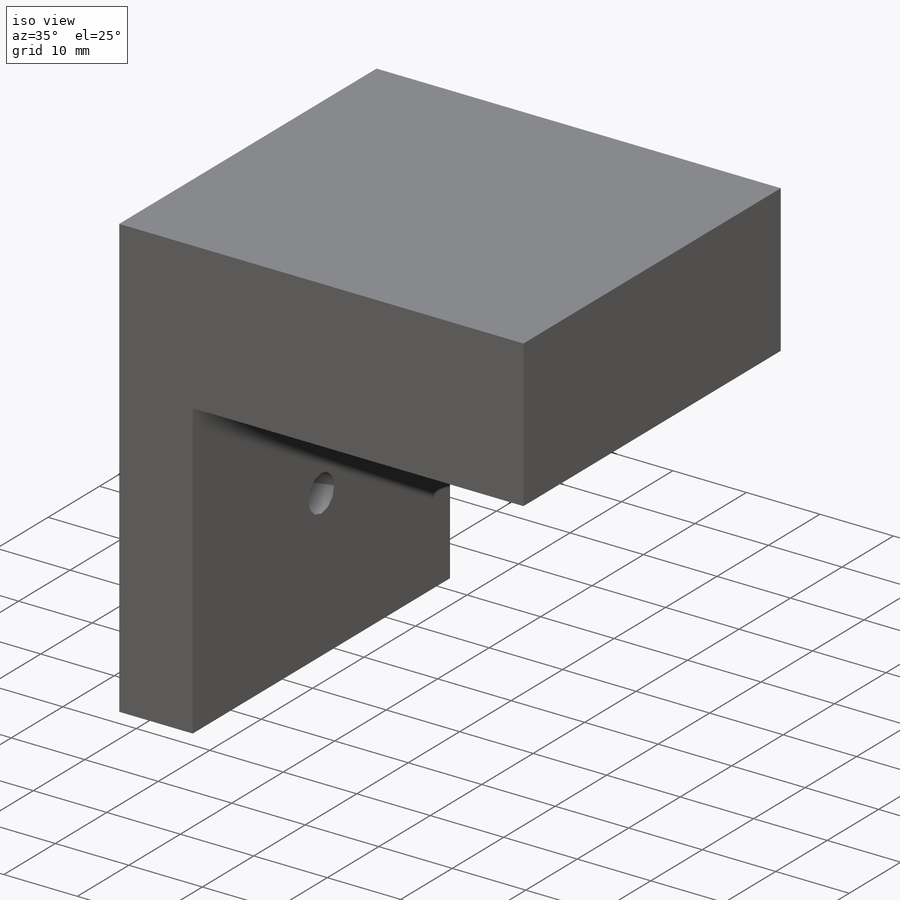
[diagram: iso view]
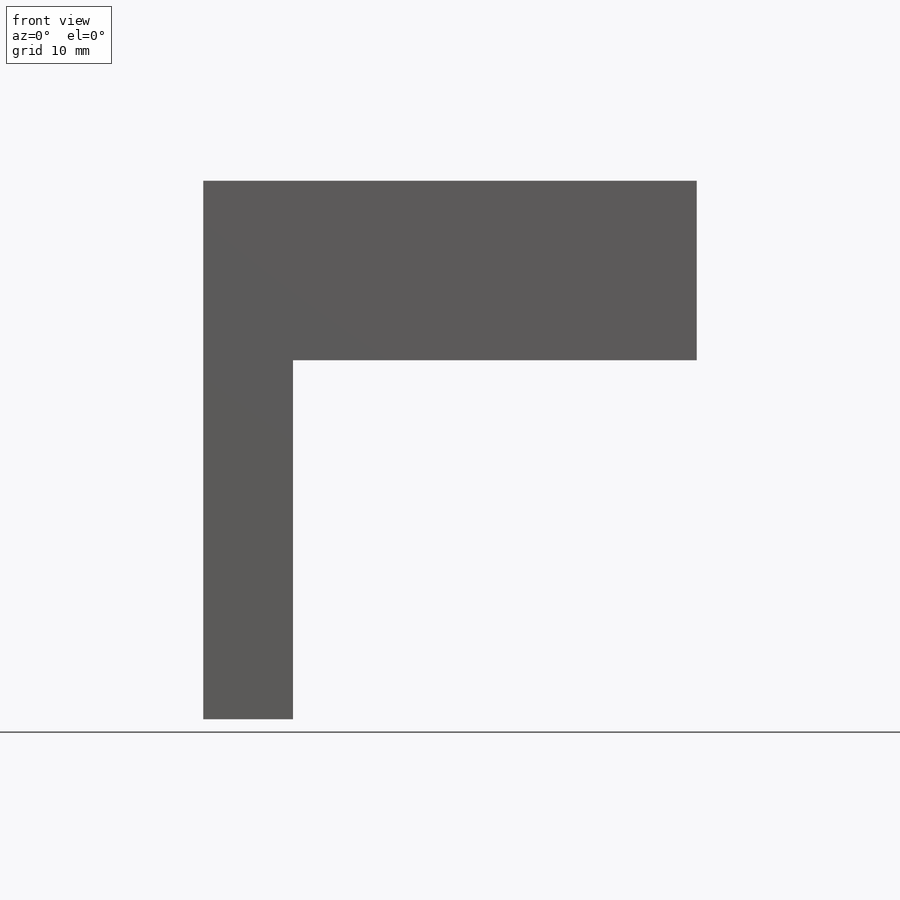
[diagram: front view]
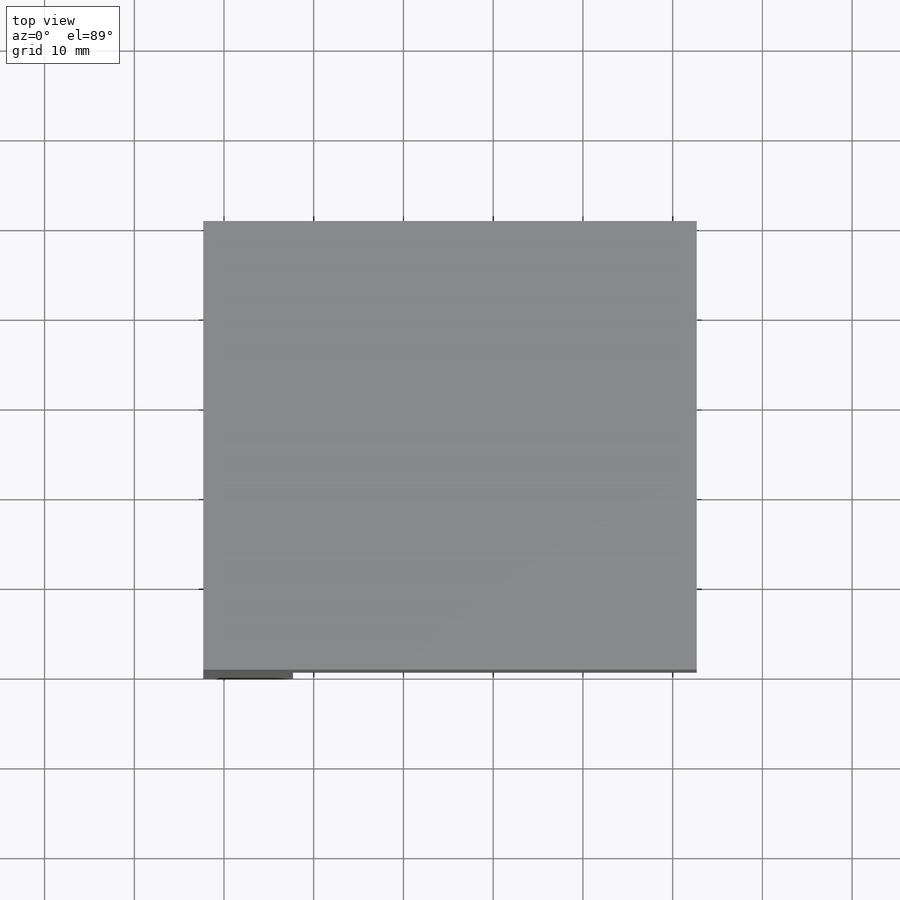
[diagram: top view]
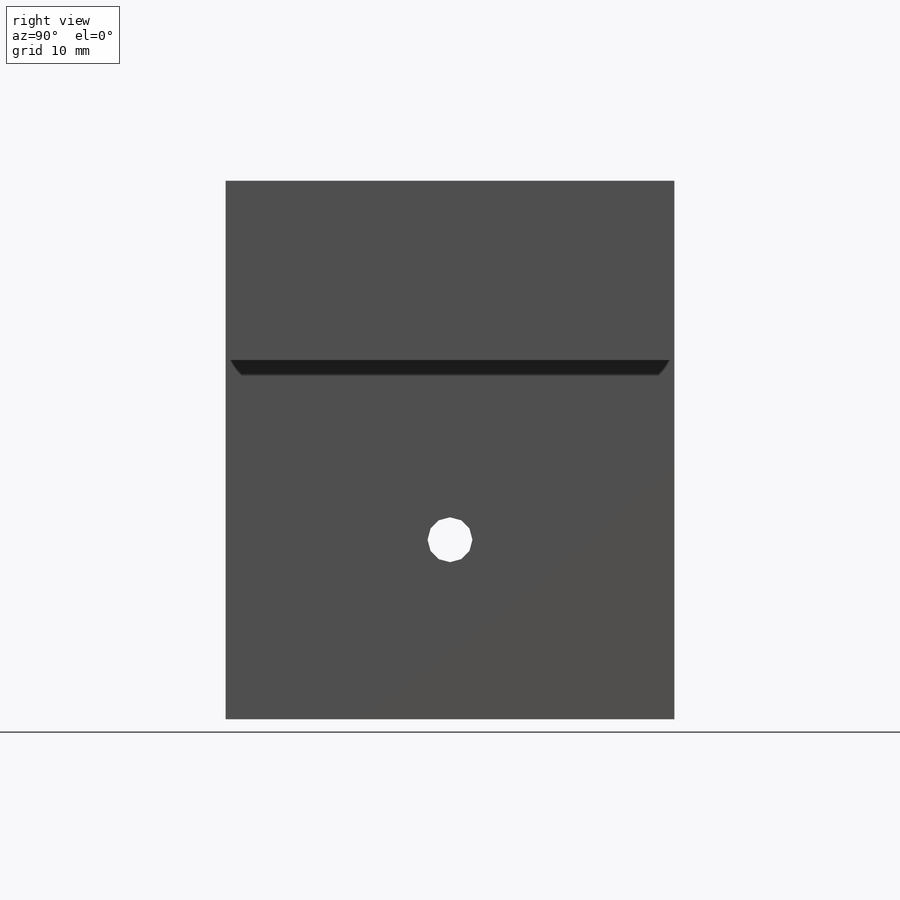
[diagram: right view]
SOLIDWORKS PART (.sldprt)
format: sldprt  version: not decoded by parser v0  size: 147,968 bytes
history: native  units: mm
features: plane x3, sketch x3, material x1, extrude x1, hole x1 (+9 scaffold rows collapsed)
feature tree (18):
  scaffold x9  (default folders/planes/origin — collapsed)
  material  "Material <sin especificar>"
  plane  "Alzado"
  plane  "Planta"
  plane  "Vista lateral"
  sketch  "Croquis1"  dims[D1=20.0mm]
  extrude  "Saliente-Extruir1"  Depth=50mm
  hole  "Perforador para roscar para macho de roscar para M6x1.01"  Depth=11mm  [1 undecoded]
  sketch  "Croquis3D1"  dims[D1=25.0mm D2=20.0mm]
  sketch  "Croquis2"  dims[hole-wizard template sketch: 46 standard entries collapsed; hole parameters kept: c15.Diámetro de taladro=5.0mm c15.Profundidad de taladro=11.0mm c15.D3=~14.816244mm c15.Ángulo de perforador=118.0deg]
decode coverage: 5 of 5 modeling features carry decoded parameters
note: ~ marks probable driven/reference dimensions
note: 1 parameter value undecoded
note: suppression state not decoded; provenance and decode notes live in map.json
